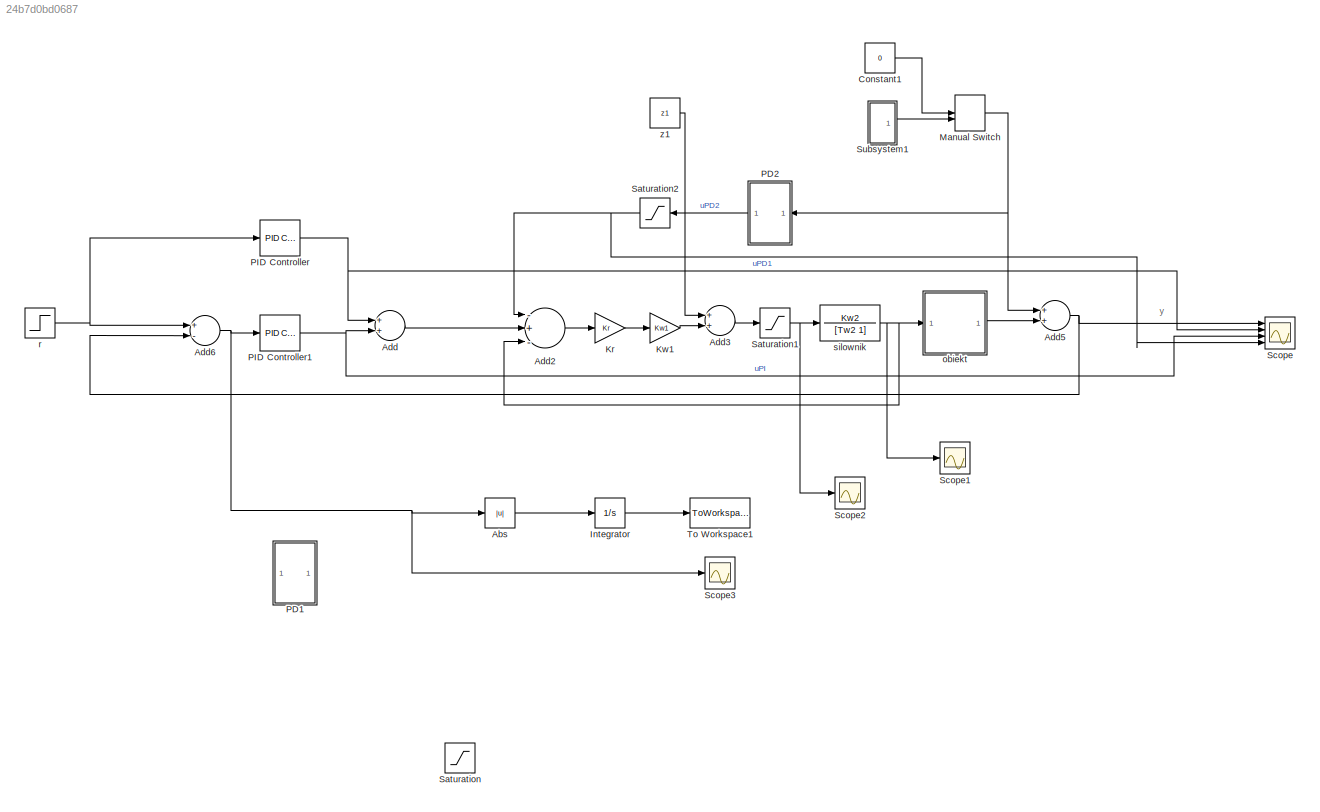
MODEL slx_24b7d0bd0687
KIND model
CONFIG AbsTol = auto
CONFIG FixedStep = 0.001
CONFIG MaxStep = auto
CONFIG MinStep = auto
CONFIG RelTol = 1e-3
CONFIG SampleTimeConstraint = Unconstrained
CONFIG Solver = ode4
CONFIG SolverMode = Auto
CONFIG SolverName = ode4
CONFIG StartTime = 0.0
CONFIG StopTime = 60
BLOCK [Abs] Abs
  SaturateOnIntegerOverflow = off
BLOCK [Sum] Add
  InputSameDT = off
  OutDataTypeStr = Inherit: Inherit via internal rule
  Ports = [2, 1]
  SaturateOnIntegerOverflow = off
BLOCK [Sum] Add2
  InputSameDT = off
  Inputs = -+-
  OutDataTypeStr = Inherit: Inherit via internal rule
  Ports = [3, 1]
  SaturateOnIntegerOverflow = off
BLOCK [Sum] Add3
  InputSameDT = off
  OutDataTypeStr = Inherit: Inherit via internal rule
  Ports = [2, 1]
  SaturateOnIntegerOverflow = off
BLOCK [Sum] Add5
  InputSameDT = off
  OutDataTypeStr = Inherit: Inherit via internal rule
  Ports = [2, 1]
  SaturateOnIntegerOverflow = off
BLOCK [Sum] Add6
  InputSameDT = off
  Inputs = +-
  OutDataTypeStr = Inherit: Inherit via internal rule
  Ports = [2, 1]
  SaturateOnIntegerOverflow = off
BLOCK [Constant] Constant1
  Value = 0
BLOCK [Integrator] Integrator
  Ports = [1, 1]
BLOCK [Gain] Kr
  Gain = Kr
  OutDataTypeStr = Inherit: Inherit via internal rule
  ParamDataTypeStr = Inherit: Inherit via internal rule
  SaturateOnIntegerOverflow = off
BLOCK [Gain] Kw1 
  Gain = Kw1
  OutDataTypeStr = Inherit: Inherit via internal rule
  ParamDataTypeStr = Inherit: Inherit via internal rule
  SaturateOnIntegerOverflow = off
BLOCK [ManualSwitch] Manual Switch
  CurrentSetting = 0
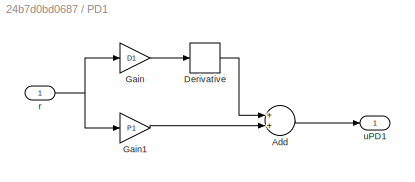
BLOCK [SubSystem] PD1
  Commented = on
  Ports = [1, 1]
  RequestExecContextInheritance = off
  Variant = off
BLOCK [Sum] PD1/Add
  InputSameDT = off
  OutDataTypeStr = Inherit: Inherit via internal rule
  Ports = [2, 1]
  SaturateOnIntegerOverflow = off
BLOCK [Derivative] PD1/Derivative
BLOCK [Gain] PD1/Gain
  Gain = D1
  OutDataTypeStr = Inherit: Inherit via internal rule
  ParamDataTypeStr = Inherit: Inherit via internal rule
  SaturateOnIntegerOverflow = off
BLOCK [Gain] PD1/Gain1
  Gain = P1
  OutDataTypeStr = Inherit: Inherit via internal rule
  ParamDataTypeStr = Inherit: Inherit via internal rule
  SaturateOnIntegerOverflow = off
BLOCK [Inport] PD1/r
  IconDisplay = Port number
BLOCK [Outport] PD1/uPD1
  IconDisplay = Port number
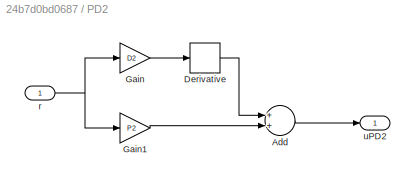
BLOCK [SubSystem] PD2
  Ports = [1, 1]
  RequestExecContextInheritance = off
  Variant = off
BLOCK [Sum] PD2/Add
  InputSameDT = off
  OutDataTypeStr = Inherit: Inherit via internal rule
  Ports = [2, 1]
  SaturateOnIntegerOverflow = off
BLOCK [Derivative] PD2/Derivative
BLOCK [Gain] PD2/Gain
  Gain = D2
  OutDataTypeStr = Inherit: Inherit via internal rule
  ParamDataTypeStr = Inherit: Inherit via internal rule
  SaturateOnIntegerOverflow = off
BLOCK [Gain] PD2/Gain1
  Gain = P2
  OutDataTypeStr = Inherit: Inherit via internal rule
  ParamDataTypeStr = Inherit: Inherit via internal rule
  SaturateOnIntegerOverflow = off
BLOCK [Inport] PD2/r
  IconDisplay = Port number
BLOCK [Outport] PD2/uPD2
  IconDisplay = Port number
BLOCK [Reference] PID Controller  REF=simulink/Continuous/PID Controller
  Ports = [1, 1]
  SourceBlock = simulink/Continuous/PID Controller
  SourceType = PID 1dof
BLOCK [Reference] PID Controller1  REF=simulink/Continuous/PID Controller
  Ports = [1, 1]
  SourceBlock = simulink/Continuous/PID Controller
  SourceType = PID 1dof
BLOCK [Saturate] Saturation
  Commented = on
  InputPortMap = u0
  LowerLimit = -limit3
  Ports = [1, 1]
  UpperLimit = limit3
BLOCK [Saturate] Saturation1
  InputPortMap = u0
  LowerLimit = -limit2
  Ports = [1, 1]
  UpperLimit = limit2
BLOCK [Saturate] Saturation2
  InputPortMap = u0
  LowerLimit = -limit2
  Ports = [1, 1]
  UpperLimit = limit2
BLOCK [Scope] Scope
  NumInputPorts = 4
  Ports = [4]
  ScopeSpecificationString = Simulink.scopes.TimeScopeBlockCfg('CurrentConfiguration', extmgr.ConfigurationSet(extmgr.Configuration('Core','General UI',true),extmgr.Configuration('Core','Source UI',true),extmgr.Configuration('Sources','WiredSimulink',true),extmgr.Configuration('Visuals','Time Domain',true,'SerializedDisplays',{struct('MinYLimReal','-2.59116','MaxYLimReal','23.32048','YLabelReal','','MinYLimMag','0.00000','Max...<+3413ch>
BLOCK [Scope] Scope1
  Ports = [1]
  ScopeSpecificationString = Simulink.scopes.TimeScopeBlockCfg('CurrentConfiguration', extmgr.ConfigurationSet(extmgr.Configuration('Core','General UI',true),extmgr.Configuration('Core','Source UI',true),extmgr.Configuration('Sources','WiredSimulink',true,'DataLoggingVariableName','ScopeData1'),extmgr.Configuration('Visuals','Time Domain',true,'SerializedDisplays',{struct('MinYLimReal','-31.52953','MaxYLimReal','110.91563','Y...<+1432ch>
BLOCK [Scope] Scope2
  Ports = [1]
  ScopeSpecificationString = Simulink.scopes.TimeScopeBlockCfg('CurrentConfiguration', extmgr.ConfigurationSet(extmgr.Configuration('Core','General UI',true),extmgr.Configuration('Core','Source UI',true),extmgr.Configuration('Sources','WiredSimulink',true,'DataLoggingVariableName','ScopeData1'),extmgr.Configuration('Visuals','Time Domain',true,'SerializedDisplays',{struct('MinYLimReal','-50.00000','MaxYLimReal','50.00000','YL...<+1451ch>
BLOCK [Scope] Scope3
  Ports = [1]
  ScopeSpecificationString = Simulink.scopes.TimeScopeBlockCfg('CurrentConfiguration', extmgr.ConfigurationSet(extmgr.Configuration('Core','General UI',true),extmgr.Configuration('Core','Source UI',true),extmgr.Configuration('Sources','WiredSimulink',true,'DataLoggingVariableName','ScopeData1'),extmgr.Configuration('Visuals','Time Domain',true,'SerializedDisplays',{struct('MinYLimReal','-49.20309','MaxYLimReal','83.24479','YL...<+1425ch>
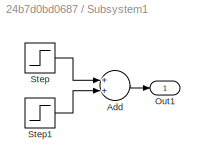
BLOCK [SubSystem] Subsystem1
  Ports = [0, 1]
  RequestExecContextInheritance = off
  Variant = off
BLOCK [Sum] Subsystem1/Add
  InputSameDT = off
  OutDataTypeStr = Inherit: Inherit via internal rule
  Ports = [2, 1]
  SaturateOnIntegerOverflow = off
BLOCK [Outport] Subsystem1/Out1
  IconDisplay = Port number
BLOCK [Step] Subsystem1/Step
  After = 5
  SampleTime = 0
  Time = 20
BLOCK [Step] Subsystem1/Step1
  After = -5
  SampleTime = 0
  Time = 25
BLOCK [ToWorkspace] To Workspace1
  FixptAsFi = on
  MaxDataPoints = 1
  Ports = [1]
  SampleTime = -1
  Save2DSignal = 3-D array (concatenate along third dimension)
  VariableName = J
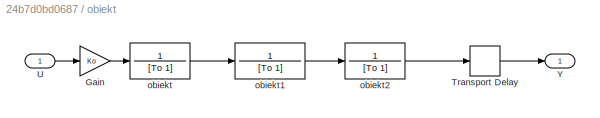
BLOCK [SubSystem] obiekt
  Ports = [1, 1]
  RequestExecContextInheritance = off
  Variant = off
BLOCK [Gain] obiekt/Gain
  Gain = Ko
  OutDataTypeStr = Inherit: Inherit via internal rule
  ParamDataTypeStr = Inherit: Inherit via internal rule
  SaturateOnIntegerOverflow = off
BLOCK [TransportDelay] obiekt/Transport Delay
  DelayTime = tau
  Ports = [1, 1]
BLOCK [Inport] obiekt/U
  IconDisplay = Port number
BLOCK [Outport] obiekt/Y
  IconDisplay = Port number
BLOCK [TransferFcn] obiekt/obiekt
  Denominator = [To 1]
  Numerator = 1
BLOCK [TransferFcn] obiekt/obiekt1
  Denominator = [To 1]
  Numerator = 1
BLOCK [TransferFcn] obiekt/obiekt2
  Denominator = [To 1]
  Numerator = 1
BLOCK [Step] r
  After = r
  SampleTime = 0
BLOCK [TransferFcn] silownik
  Denominator = [Tw2 1]
  Numerator = Kw2
BLOCK [Constant] z1
  Value = z1
ANNOTATION (root): y
LINE Abs:1 -> Integrator:1
LINE Add2:1 -> Kr:1
LINE Add3:1 -> Saturation1:1
NET Add5:1 -> Add6:2, Scope:1
NET Add6:1 -> Abs:1, PID Controller1:1, Scope3:1
LINE Add:1 -> Add2:2
LINE Constant1:1 -> Manual Switch:1
LINE Integrator:1 -> To Workspace1:1
LINE Kr:1 -> Kw1 :1
LINE Kw1 :1 -> Add3:2
NET Manual Switch:1 -> Add5:1, PD2:1
LINE PD1/Add:1 -> PD1/uPD1:1
LINE PD1/Derivative:1 -> PD1/Add:1
LINE PD1/Gain1:1 -> PD1/Add:2
LINE PD1/Gain:1 -> PD1/Derivative:1
NET PD1/r:1 -> PD1/Gain1:1, PD1/Gain:1
LINE PD2/Add:1 -> PD2/uPD2:1
LINE PD2/Derivative:1 -> PD2/Add:1
LINE PD2/Gain1:1 -> PD2/Add:2
LINE PD2/Gain:1 -> PD2/Derivative:1
NET PD2/r:1 -> PD2/Gain1:1, PD2/Gain:1
LINE PD2:1 -> Saturation2:1
NET PID Controller1:1 -> Add:2, Scope:3
NET PID Controller:1 -> Add:1, Scope:2
NET Saturation1:1 -> Scope2:1, silownik:1
NET Saturation2:1 -> Add2:1, Scope:4
LINE Subsystem1/Add:1 -> Subsystem1/Out1:1
LINE Subsystem1/Step1:1 -> Subsystem1/Add:2
LINE Subsystem1/Step:1 -> Subsystem1/Add:1
LINE Subsystem1:1 -> Manual Switch:2
LINE obiekt/Gain:1 -> obiekt/obiekt:1
LINE obiekt/Transport Delay:1 -> obiekt/Y:1
LINE obiekt/U:1 -> obiekt/Gain:1
LINE obiekt/obiekt1:1 -> obiekt/obiekt2:1
LINE obiekt/obiekt2:1 -> obiekt/Transport Delay:1
LINE obiekt/obiekt:1 -> obiekt/obiekt1:1
LINE obiekt:1 -> Add5:2
NET r:1 -> Add6:1, PID Controller:1
NET silownik:1 -> Add2:3, Scope1:1, obiekt:1
LINE z1:1 -> Add3:1
note: NET lines group one-source signal fan-out (src -> all destinations, sorted); 1:1 wires keep LINE
